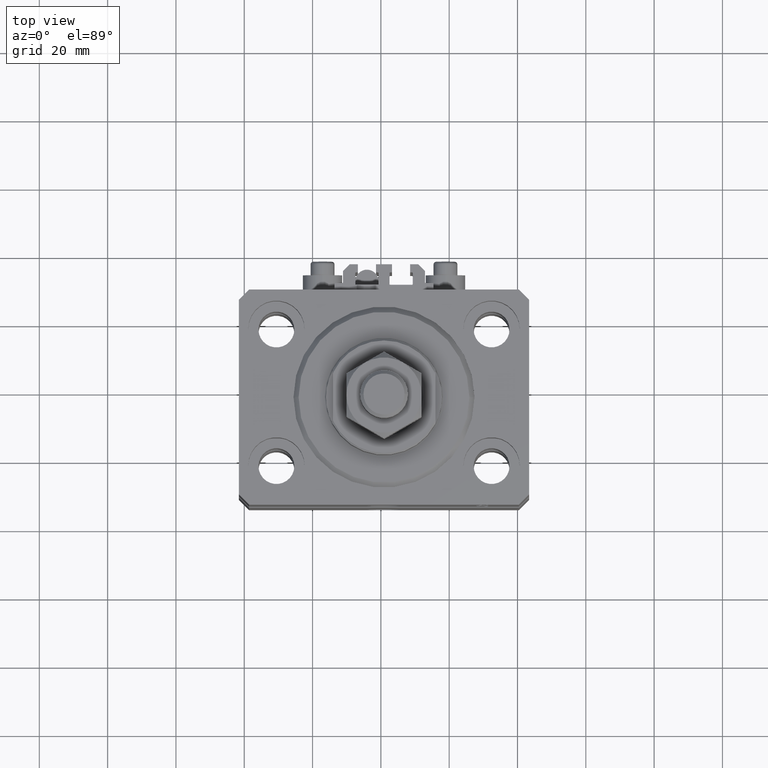
[diagram: clean part render]
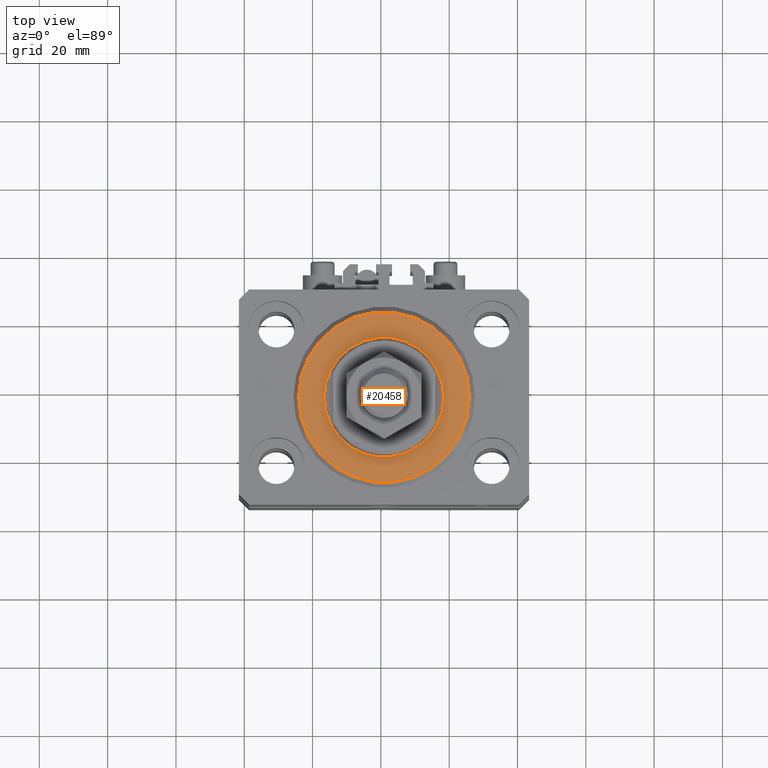
[diagram: same view with one face highlighted and labeled with its STEP entity id]
A machine part, top view. The second image highlights one B-rep face of the part: STEP entity #20458.
In plain terms, the highlighted planar face has unit normal (0, 0, -1).
Its self-contained STEP definition (entity closure, byte-faithful):
#183 = DIRECTION ( 'NONE',  ( -0.000000000000000000, -0.000000000000000000, -1.000000000000000000 ) ) ;
#1257 = VERTEX_POINT ( 'NONE', #3320 ) ;
#3320 = CARTESIAN_POINT ( 'NONE',  ( 17.50000000000000000, 0.000000000000000000, 2.168404344971008868E-16 ) ) ;
#3489 = CIRCLE ( 'NONE', #32482, 24.99999999999995026 ) ;
#3515 = CARTESIAN_POINT ( 'NONE',  ( -17.50000000000000000, 2.143131898507868643E-15, 2.168404344971008868E-16 ) ) ;
#4164 = EDGE_CURVE ( 'NONE', #9580, #1257, #43603, .T. ) ;
#6577 = AXIS2_PLACEMENT_3D ( 'NONE', #11038, #45173, #36807 ) ;
#7061 = DIRECTION ( 'NONE',  ( 1.000000000000000000, 0.000000000000000000, -0.000000000000000000 ) ) ;
#7512 = EDGE_CURVE ( 'NONE', #17310, #27557, #3489, .T. ) ;
#9580 = VERTEX_POINT ( 'NONE', #3515 ) ;
#10008 = ORIENTED_EDGE ( 'NONE', *, *, #36624, .T. ) ;
#10293 = AXIS2_PLACEMENT_3D ( 'NONE', #26236, #41689, #7061 ) ;
#11038 = CARTESIAN_POINT ( 'NONE',  ( 0.000000000000000000, 0.000000000000000000, 0.000000000000000000 ) ) ;
#11055 = DIRECTION ( 'NONE',  ( 1.000000000000000000, 0.000000000000000000, 0.000000000000000000 ) ) ;
#14740 = CIRCLE ( 'NONE', #27648, 24.99999999999995026 ) ;
#17310 = VERTEX_POINT ( 'NONE', #20668 ) ;
#18533 = AXIS2_PLACEMENT_3D ( 'NONE', #19745, #24277, #32108 ) ;
#19090 = CARTESIAN_POINT ( 'NONE',  ( 0.000000000000000000, 0.000000000000000000, 0.000000000000000000 ) ) ;
#19133 = FACE_BOUND ( 'NONE', #28853, .T. ) ;
#19745 = CARTESIAN_POINT ( 'NONE',  ( 0.000000000000000000, 0.000000000000000000, 0.000000000000000000 ) ) ;
#20458 = ADVANCED_FACE ( 'NONE', ( #19133, #34827 ), #45487, .F. ) ;
#20511 = EDGE_LOOP ( 'NONE', ( #41835, #37200 ) ) ;
#20668 = CARTESIAN_POINT ( 'NONE',  ( 24.99999999999995026, 0.000000000000000000, 0.000000000000000000 ) ) ;
#21536 = DIRECTION ( 'NONE',  ( -0.000000000000000000, -0.000000000000000000, -1.000000000000000000 ) ) ;
#22733 = CARTESIAN_POINT ( 'NONE',  ( 0.000000000000000000, 0.000000000000000000, 0.000000000000000000 ) ) ;
#24277 = DIRECTION ( 'NONE',  ( 0.000000000000000000, 0.000000000000000000, 1.000000000000000000 ) ) ;
#26236 = CARTESIAN_POINT ( 'NONE',  ( 0.000000000000000000, 0.000000000000000000, 0.000000000000000000 ) ) ;
#26750 = CIRCLE ( 'NONE', #6577, 17.50000000000000000 ) ;
#27557 = VERTEX_POINT ( 'NONE', #47107 ) ;
#27648 = AXIS2_PLACEMENT_3D ( 'NONE', #19090, #183, #11055 ) ;
#28853 = EDGE_LOOP ( 'NONE', ( #10008, #40998 ) ) ;
#29641 = DIRECTION ( 'NONE',  ( 1.000000000000000000, 0.000000000000000000, 0.000000000000000000 ) ) ;
#32108 = DIRECTION ( 'NONE',  ( 1.000000000000000000, 0.000000000000000000, 0.000000000000000000 ) ) ;
#32482 = AXIS2_PLACEMENT_3D ( 'NONE', #22733, #21536, #29641 ) ;
#34827 = FACE_OUTER_BOUND ( 'NONE', #20511, .T. ) ;
#36624 = EDGE_CURVE ( 'NONE', #1257, #9580, #26750, .T. ) ;
#36807 = DIRECTION ( 'NONE',  ( 1.000000000000000000, 0.000000000000000000, 0.000000000000000000 ) ) ;
#37200 = ORIENTED_EDGE ( 'NONE', *, *, #42595, .T. ) ;
#40998 = ORIENTED_EDGE ( 'NONE', *, *, #4164, .T. ) ;
#41689 = DIRECTION ( 'NONE',  ( 0.000000000000000000, 0.000000000000000000, 1.000000000000000000 ) ) ;
#41835 = ORIENTED_EDGE ( 'NONE', *, *, #7512, .T. ) ;
#42595 = EDGE_CURVE ( 'NONE', #27557, #17310, #14740, .T. ) ;
#43603 = CIRCLE ( 'NONE', #18533, 17.50000000000000000 ) ;
#45173 = DIRECTION ( 'NONE',  ( 0.000000000000000000, 0.000000000000000000, 1.000000000000000000 ) ) ;
#45487 = PLANE ( 'NONE',  #10293 ) ;
#47107 = CARTESIAN_POINT ( 'NONE',  ( -24.99999999999995026, 3.153465507804431248E-15, 0.000000000000000000 ) ) ;